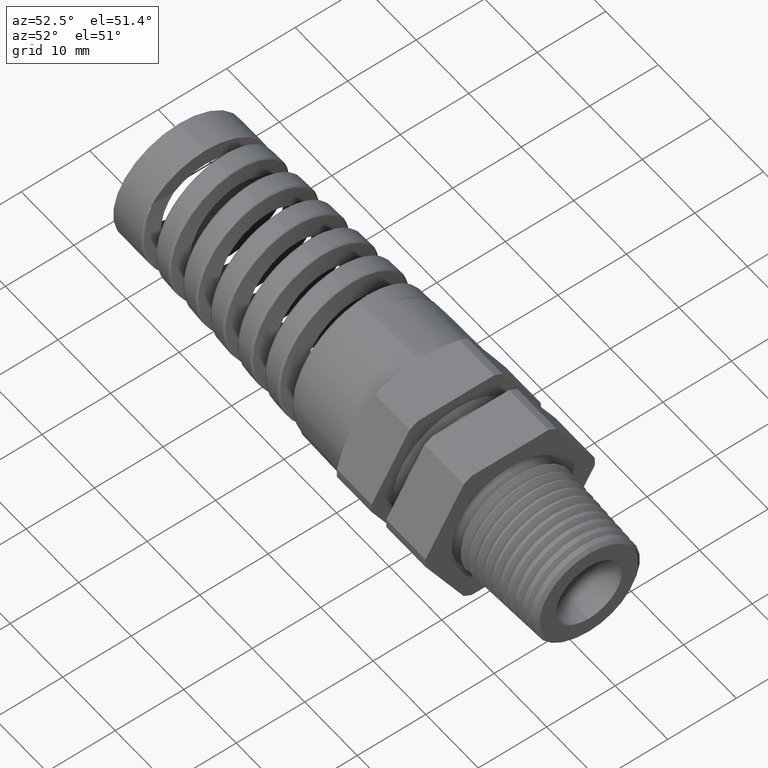
[diagram: clean part render]
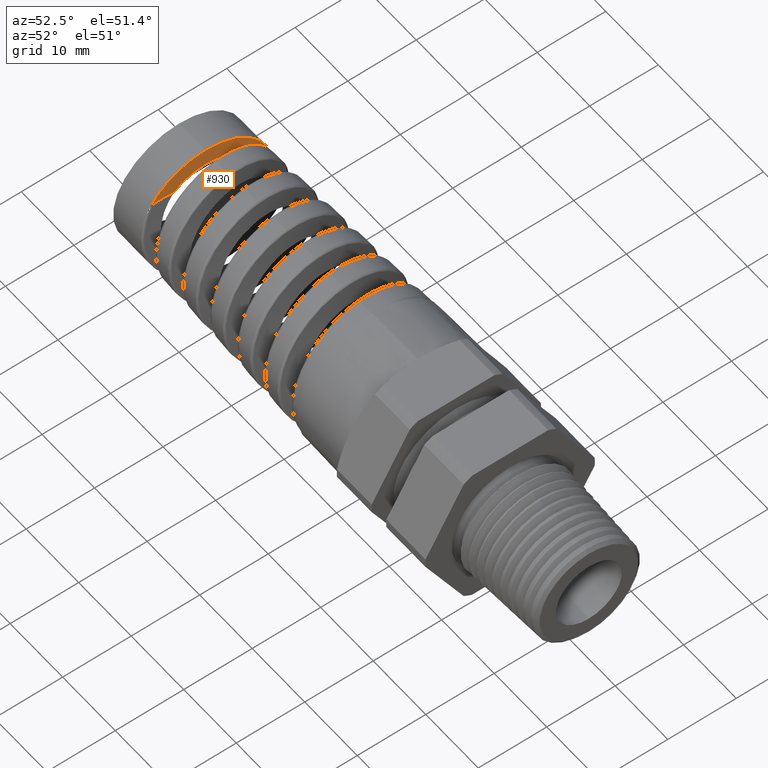
[diagram: same view with one face highlighted and labeled with its STEP entity id]
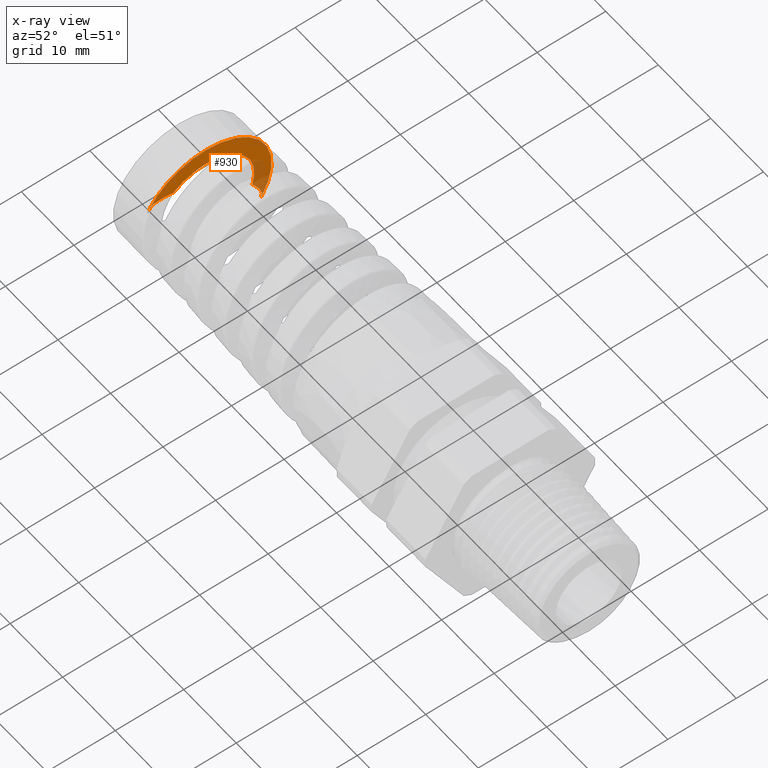
[diagram: x-ray of the same camera — body ghosted, the highlighted face saturated]
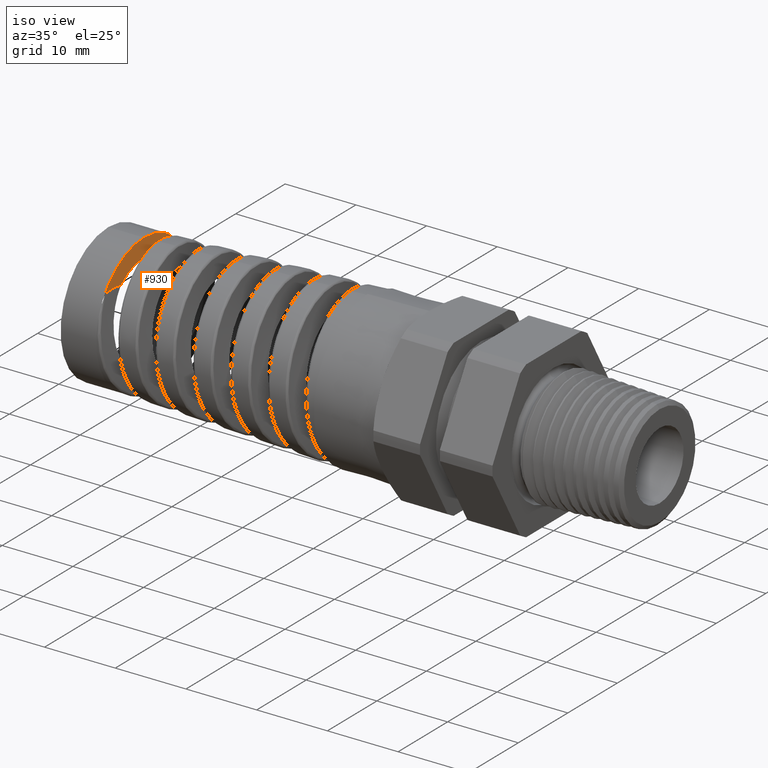
[diagram: same view with one face highlighted and labeled with its STEP entity id]
A machine part, auxiliary view. The second image highlights one B-rep face of the part: STEP entity #930.
The next image is the same camera in x-ray: the body ghosted, the highlighted face saturated — about 16% of this face is hidden behind the body in this view.
A second angle (iso view) of the same face is appended — the face is thin or edge-on in the first view.
In plain terms, the highlighted planar face has unit normal (-1, 0, 0).
Its self-contained STEP definition (entity closure, byte-faithful):
#568 = VERTEX_POINT ( 'NONE', #3887 ) ;
#927 = EDGE_LOOP ( 'NONE', ( #964, #965, #961, #962, #946, #945, #944, #943 ) ) ;
#930 = ADVANCED_FACE ( 'NONE', ( #4153 ), #4152, .F. ) ;
#933 = EDGE_CURVE ( 'NONE', #1726, #8969, #4203, .T. ) ;
#941 = EDGE_CURVE ( 'NONE', #568, #9567, #4186, .T. ) ;
#942 = EDGE_CURVE ( 'NONE', #568, #8802, #4177, .T. ) ;
#943 = ORIENTED_EDGE ( 'NONE', *, *, #1068, .T. ) ;
#944 = ORIENTED_EDGE ( 'NONE', *, *, #942, .T. ) ;
#945 = ORIENTED_EDGE ( 'NONE', *, *, #941, .F. ) ;
#946 = ORIENTED_EDGE ( 'NONE', *, *, #1745, .F. ) ;
#947 = EDGE_CURVE ( 'NONE', #8973, #1744, #4234, .T. ) ;
#961 = ORIENTED_EDGE ( 'NONE', *, *, #8983, .T. ) ;
#962 = ORIENTED_EDGE ( 'NONE', *, *, #947, .T. ) ;
#964 = ORIENTED_EDGE ( 'NONE', *, *, #1728, .T. ) ;
#965 = ORIENTED_EDGE ( 'NONE', *, *, #933, .T. ) ;
#1068 = EDGE_CURVE ( 'NONE', #8802, #1729, #4208, .T. ) ;
#1726 = VERTEX_POINT ( 'NONE', #10030 ) ;
#1728 = EDGE_CURVE ( 'NONE', #1729, #1726, #10028, .T. ) ;
#1729 = VERTEX_POINT ( 'NONE', #10029 ) ;
#1744 = VERTEX_POINT ( 'NONE', #10164 ) ;
#1745 = EDGE_CURVE ( 'NONE', #9567, #1744, #10159, .T. ) ;
#3887 = CARTESIAN_POINT ( 'NONE',  ( -2.281600000000000100, -0.3603661782398758200, 0.1190897738604335000 ) ) ;
#4150 = CARTESIAN_POINT ( 'NONE',  ( -2.281600000000000100, 0.0000000000000000000, 0.0000000000000000000 ) ) ;
#4151 = AXIS2_PLACEMENT_3D ( 'NONE', #4150, #4205, #4204 ) ;
#4152 = PLANE ( 'NONE',  #4151 ) ;
#4153 = FACE_OUTER_BOUND ( 'NONE', #927, .T. ) ;
#4177 = B_SPLINE_CURVE_WITH_KNOTS ( 'NONE', 3,
 ( #4181, #4180, #4179, #4178, #4233, #4232, #4231, #4230, #4229, #4228, #4227, #4226, #4225, #4224 ),
 .UNSPECIFIED., .F., .F.,
 ( 4, 2, 2, 2, 2, 2, 4 ),
 ( 0.0000000000000000000, 0.001470788138019581700, 0.002206182207029373800, 0.002573879241534271200, 0.002757727758786720700, 0.002849652017412946800, 0.002941576276039172400 ),
 .UNSPECIFIED. ) ;
#4178 = CARTESIAN_POINT ( 'NONE',  ( -2.281600000000000500, -0.3321441851067419300, 0.1799055335336935400 ) ) ;
#4179 = CARTESIAN_POINT ( 'NONE',  ( -2.281600000000000100, -0.3464602949371384800, 0.1551213986437887900 ) ) ;
#4180 = CARTESIAN_POINT ( 'NONE',  ( -2.281600000000000100, -0.3543061247698101600, 0.1374275222509570600 ) ) ;
#4181 = CARTESIAN_POINT ( 'NONE',  ( -2.281600000000000100, -0.3603661782398758200, 0.1190897738604335000 ) ) ;
#4182 = DIRECTION ( 'NONE',  ( 0.0000000000000000000, 0.0000000000000000000, 1.000000000000000000 ) ) ;
#4183 = DIRECTION ( 'NONE',  ( -1.000000000000000000, 0.0000000000000000000, 0.0000000000000000000 ) ) ;
#4184 = CARTESIAN_POINT ( 'NONE',  ( -2.281600000000000100, 0.0000000000000000000, 0.0000000000000000000 ) ) ;
#4185 = AXIS2_PLACEMENT_3D ( 'NONE', #4184, #4183, #4182 ) ;
#4186 = CIRCLE ( 'NONE', #4185, 0.3795341310835472200 ) ;
#4199 = DIRECTION ( 'NONE',  ( 0.0000000000000000000, 0.0000000000000000000, 1.000000000000000000 ) ) ;
#4200 = DIRECTION ( 'NONE',  ( -1.000000000000000000, 0.0000000000000000000, 0.0000000000000000000 ) ) ;
#4201 = CARTESIAN_POINT ( 'NONE',  ( -2.281600000000000100, 0.0000000000000000000, 0.0000000000000000000 ) ) ;
#4202 = AXIS2_PLACEMENT_3D ( 'NONE', #4201, #4200, #4199 ) ;
#4203 = CIRCLE ( 'NONE', #4202, 0.2795341310835530700 ) ;
#4204 = DIRECTION ( 'NONE',  ( 0.0000000000000000000, 0.0000000000000000000, 1.000000000000000000 ) ) ;
#4205 = DIRECTION ( 'NONE',  ( -1.000000000000000000, 0.0000000000000000000, 0.0000000000000000000 ) ) ;
#4206 = CARTESIAN_POINT ( 'NONE',  ( -2.281600000000000500, -0.3006329714116367500, 0.2157487618829634900 ) ) ;
#4208 = B_SPLINE_CURVE_WITH_KNOTS ( 'NONE', 3,
 ( #4206, #4271, #4270, #4269, #4268, #4267, #4266, #4265 ),
 .UNSPECIFIED., .F., .F.,
 ( 4, 2, 2, 4 ),
 ( 0.002421744849738271500, 0.003164346301742777200, 0.003906947753747282500, 0.005392150657756293900 ),
 .UNSPECIFIED. ) ;
#4209 = CARTESIAN_POINT ( 'NONE',  ( -2.281600000000000100, 0.2669025878950542800, -0.2698317350354965100 ) ) ;
#4210 = CARTESIAN_POINT ( 'NONE',  ( -2.281599999999999200, 0.2797152457377663500, -0.2571581644653638800 ) ) ;
#4211 = CARTESIAN_POINT ( 'NONE',  ( -2.281599999999999600, 0.2912395570239011400, -0.2434767025884337600 ) ) ;
#4212 = CARTESIAN_POINT ( 'NONE',  ( -2.281600000000000500, 0.3063739302753227300, -0.2212708971626150500 ) ) ;
#4213 = CARTESIAN_POINT ( 'NONE',  ( -2.281600000000001000, 0.3110854426665584100, -0.2135496727339771300 ) ) ;
#4214 = CARTESIAN_POINT ( 'NONE',  ( -2.281600000000000500, 0.3172770453406234500, -0.2015531656745077900 ) ) ;
#4215 = CARTESIAN_POINT ( 'NONE',  ( -2.281600000000000500, 0.3192014460502860000, -0.1974881296325948200 ) ) ;
#4216 = CARTESIAN_POINT ( 'NONE',  ( -2.281599999999999600, 0.3217067109011745300, -0.1912095677304190300 ) ) ;
#4217 = CARTESIAN_POINT ( 'NONE',  ( -2.281599999999999600, 0.3224844225852733800, -0.1890782521366203600 ) ) ;
#4218 = CARTESIAN_POINT ( 'NONE',  ( -2.281599999999999600, 0.3234312064930710600, -0.1858241000837228800 ) ) ;
#4219 = CARTESIAN_POINT ( 'NONE',  ( -2.281599999999999200, 0.3237117046124989800, -0.1847310009942198200 ) ) ;
#4220 = CARTESIAN_POINT ( 'NONE',  ( -2.281600000000000100, 0.3241053414195610400, -0.1825048340907147500 ) ) ;
#4221 = CARTESIAN_POINT ( 'NONE',  ( -2.281600000000000500, 0.3243242680355543600, -0.1813477257052789600 ) ) ;
#4222 = CARTESIAN_POINT ( 'NONE',  ( -2.281599999999999600, 0.3239766250753848300, -0.1802368612224593000 ) ) ;
#4224 = CARTESIAN_POINT ( 'NONE',  ( -2.281600000000000500, -0.3006329714116367500, 0.2157487618829634900 ) ) ;
#4225 = CARTESIAN_POINT ( 'NONE',  ( -2.281600000000000100, -0.3018545365174656300, 0.2155895398149976800 ) ) ;
#4226 = CARTESIAN_POINT ( 'NONE',  ( -2.281600000000000500, -0.3028870281074971800, 0.2148299788811549300 ) ) ;
#4227 = CARTESIAN_POINT ( 'NONE',  ( -2.281600000000000100, -0.3048691543817737500, 0.2134128100568511200 ) ) ;
#4228 = CARTESIAN_POINT ( 'NONE',  ( -2.281600000000000500, -0.3058046441664300500, 0.2126308928213597200 ) ) ;
#4229 = CARTESIAN_POINT ( 'NONE',  ( -2.281599999999999600, -0.3085345556109516100, 0.2101983794054216900 ) ) ;
#4230 = CARTESIAN_POINT ( 'NONE',  ( -2.281599999999999600, -0.3102441567309923700, 0.2084593598820013400 ) ) ;
#4231 = CARTESIAN_POINT ( 'NONE',  ( -2.281600000000000100, -0.3152054818531507800, 0.2031007839509005300 ) ) ;
#4232 = CARTESIAN_POINT ( 'NONE',  ( -2.281600000000000100, -0.3182475893184617500, 0.1993675829798196600 ) ) ;
#4233 = CARTESIAN_POINT ( 'NONE',  ( -2.281600000000000100, -0.3269436772816348100, 0.1879073247916167300 ) ) ;
#4234 = B_SPLINE_CURVE_WITH_KNOTS ( 'NONE', 3,
 ( #4222, #4221, #4220, #4219, #4218, #4217, #4216, #4215, #4214, #4213, #4212, #4211, #4210, #4209 ),
 .UNSPECIFIED., .F., .F.,
 ( 4, 2, 2, 2, 2, 2, 4 ),
 ( 1.829701590736007200E-017, 8.619558951258799400E-005, 0.0001723911790251576900, 0.0003447823580502945700, 0.0006895647161005663600, 0.001379129432201112600, 0.002758258864402205600 ),
 .UNSPECIFIED. ) ;
#4265 = CARTESIAN_POINT ( 'NONE',  ( -2.281599999999999200, -0.1842546594754181100, 0.2102131083025859700 ) ) ;
#4266 = CARTESIAN_POINT ( 'NONE',  ( -2.281599999999998700, -0.2033100253114296400, 0.2148218436392877500 ) ) ;
#4267 = CARTESIAN_POINT ( 'NONE',  ( -2.281600000000000100, -0.2225627727033409600, 0.2174437047864661900 ) ) ;
#4268 = CARTESIAN_POINT ( 'NONE',  ( -2.281599999999999600, -0.2517022725364958500, 0.2187554825725713800 ) ) ;
#4269 = CARTESIAN_POINT ( 'NONE',  ( -2.281600000000000100, -0.2614592240350895300, 0.2187519961806111400 ) ) ;
#4270 = CARTESIAN_POINT ( 'NONE',  ( -2.281600000000000500, -0.2810585551486942100, 0.2178850903660389000 ) ) ;
#4271 = CARTESIAN_POINT ( 'NONE',  ( -2.281599999999999200, -0.2909163629722563100, 0.2170152506537345600 ) ) ;
#5935 = CARTESIAN_POINT ( 'NONE',  ( -2.281600000000000500, -0.3006329714116367500, 0.2157487618829634900 ) ) ;
#6036 = CARTESIAN_POINT ( 'NONE',  ( -2.281599999999999600, 0.3239766250753848300, -0.1802368612224593000 ) ) ;
#6038 = CARTESIAN_POINT ( 'NONE',  ( -2.281600000000000100, 0.2690646717501354300, -0.07578609936280482400 ) ) ;
#7554 = CARTESIAN_POINT ( 'NONE',  ( -2.281600000000000100, 4.647952587986380500E-017, 0.3795341310835472200 ) ) ;
#8436 = CARTESIAN_POINT ( 'NONE',  ( -2.281599999999999600, 0.3239766250753848300, -0.1802368612224593000 ) ) ;
#8437 = CARTESIAN_POINT ( 'NONE',  ( -2.281600000000000500, 0.3180460613813173000, -0.1612862327743119200 ) ) ;
#8438 = CARTESIAN_POINT ( 'NONE',  ( -2.281600000000000100, 0.3105836141251190300, -0.1430292604350043300 ) ) ;
#8439 = CARTESIAN_POINT ( 'NONE',  ( -2.281600000000000500, 0.2923307002643907300, -0.1080222846986611900 ) ) ;
#8440 = CARTESIAN_POINT ( 'NONE',  ( -2.281599999999999200, 0.2814341869581102300, -0.09117152935575735500 ) ) ;
#8441 = CARTESIAN_POINT ( 'NONE',  ( -2.281600000000000100, 0.2690646717501354300, -0.07578609936280482400 ) ) ;
#8442 = B_SPLINE_CURVE_WITH_KNOTS ( 'NONE', 3,
 ( #8441, #8440, #8439, #8438, #8437, #8436 ),
 .UNSPECIFIED., .F., .F.,
 ( 4, 2, 4 ),
 ( 0.007613573068922118200, 0.009118346732691941200, 0.01062312039646176300 ),
 .UNSPECIFIED. ) ;
#8802 = VERTEX_POINT ( 'NONE', #5935 ) ;
#8969 = VERTEX_POINT ( 'NONE', #6038 ) ;
#8973 = VERTEX_POINT ( 'NONE', #6036 ) ;
#8983 = EDGE_CURVE ( 'NONE', #8969, #8973, #8442, .T. ) ;
#9567 = VERTEX_POINT ( 'NONE', #7554 ) ;
#10024 = DIRECTION ( 'NONE',  ( 0.0000000000000000000, 0.0000000000000000000, 1.000000000000000000 ) ) ;
#10025 = DIRECTION ( 'NONE',  ( -1.000000000000000000, 0.0000000000000000000, 0.0000000000000000000 ) ) ;
#10026 = CARTESIAN_POINT ( 'NONE',  ( -2.281600000000000100, 0.0000000000000000000, 0.0000000000000000000 ) ) ;
#10027 = AXIS2_PLACEMENT_3D ( 'NONE', #10026, #10025, #10024 ) ;
#10028 = CIRCLE ( 'NONE', #10027, 0.2795341310835530700 ) ;
#10029 = CARTESIAN_POINT ( 'NONE',  ( -2.281599999999999200, -0.1842546594754181100, 0.2102131083025859700 ) ) ;
#10030 = CARTESIAN_POINT ( 'NONE',  ( -2.281600000000000100, 3.423305788839099100E-017, 0.2795341310835530700 ) ) ;
#10155 = DIRECTION ( 'NONE',  ( 0.0000000000000000000, 0.0000000000000000000, 1.000000000000000000 ) ) ;
#10156 = DIRECTION ( 'NONE',  ( -1.000000000000000000, 0.0000000000000000000, 0.0000000000000000000 ) ) ;
#10157 = CARTESIAN_POINT ( 'NONE',  ( -2.281600000000000100, 0.0000000000000000000, 0.0000000000000000000 ) ) ;
#10158 = AXIS2_PLACEMENT_3D ( 'NONE', #10157, #10156, #10155 ) ;
#10159 = CIRCLE ( 'NONE', #10158, 0.3795341310835472200 ) ;
#10164 = CARTESIAN_POINT ( 'NONE',  ( -2.281600000000000100, 0.2669025878950542800, -0.2698317350354965100 ) ) ;